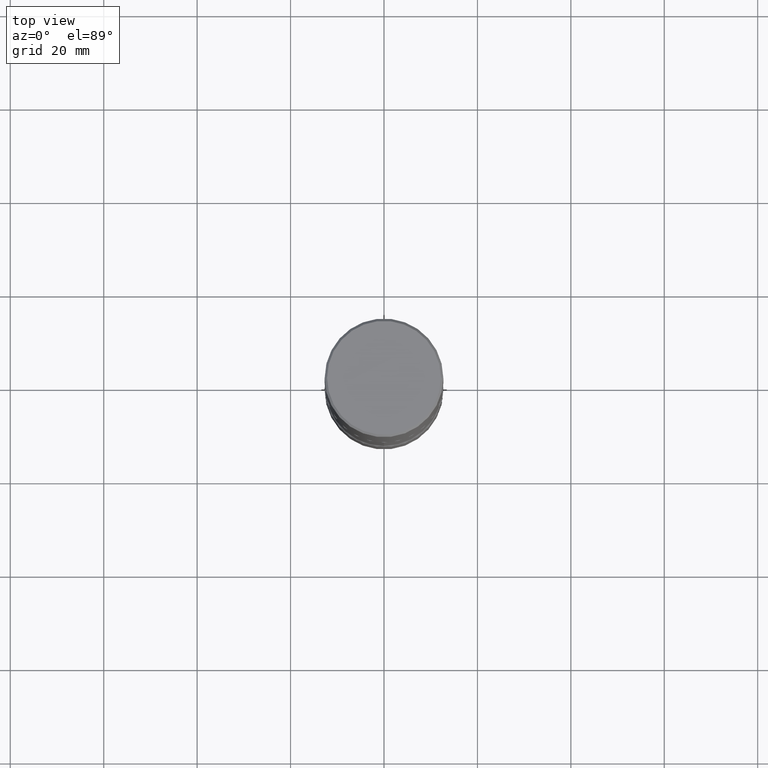
[diagram: clean part render]
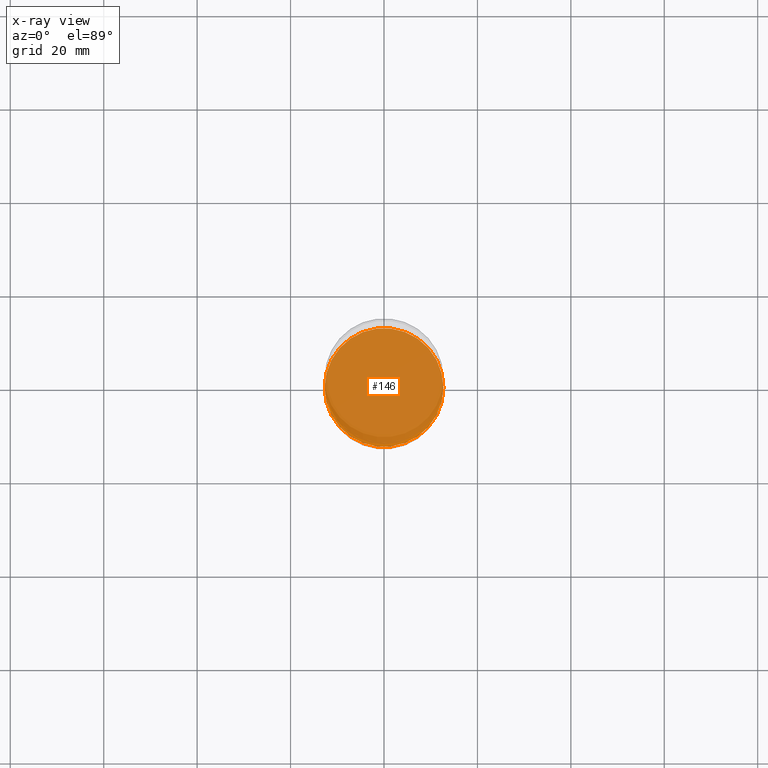
[diagram: x-ray — body ghosted, one internal face saturated and labeled with its STEP entity id]
A machine part, top view, then the same camera in x-ray: the body is ghosted and one INTERNAL B-rep face — a face not visible from any outside direction — is saturated and labeled: STEP entity #146.
In plain terms, the highlighted planar face has unit normal (0, -0, -1).
Its self-contained STEP definition (entity closure, byte-faithful):
#21 = CARTESIAN_POINT ( 'NONE',  ( 1.161597682937940108E-28, -1.658453635950494339E-14, -4.750000000000000000 ) ) ;
#51 = CARTESIAN_POINT ( 'NONE',  ( 1.161597682937940108E-28, -1.658453635950494339E-14, -4.750000000000000000 ) ) ;
#54 = CARTESIAN_POINT ( 'NONE',  ( 0.5000000000000006661, -2.007601769834807990E-14, -4.750000000000000000 ) ) ;
#88 = EDGE_LOOP ( 'NONE', ( #468, #179 ) ) ;
#100 = VERTEX_POINT ( 'NONE', #267 ) ;
#116 = EDGE_CURVE ( 'NONE', #136, #100, #455, .T. ) ;
#136 = VERTEX_POINT ( 'NONE', #54 ) ;
#138 = DIRECTION ( 'NONE',  ( 1.000000000000000000, -6.982962677686265133E-15, 0.000000000000000000 ) ) ;
#146 = ADVANCED_FACE ( 'NONE', ( #536 ), #540, .F. ) ;
#148 = DIRECTION ( 'NONE',  ( 2.438088387897960049E-29, -3.491481338843145188E-15, -1.000000000000000000 ) ) ;
#158 = CARTESIAN_POINT ( 'NONE',  ( 1.161597682937940108E-28, -1.658453635950494339E-14, -4.750000000000000000 ) ) ;
#175 = AXIS2_PLACEMENT_3D ( 'NONE', #51, #238, #284 ) ;
#179 = ORIENTED_EDGE ( 'NONE', *, *, #474, .T. ) ;
#213 = AXIS2_PLACEMENT_3D ( 'NONE', #21, #148, #326 ) ;
#238 = DIRECTION ( 'NONE',  ( -2.445468806185136597E-29, 3.491481338843145583E-15, 1.000000000000000000 ) ) ;
#267 = CARTESIAN_POINT ( 'NONE',  ( -0.5000000000000006661, -1.516162629739875255E-14, -4.750000000000000000 ) ) ;
#284 = DIRECTION ( 'NONE',  ( 1.000000000000000000, -6.982962677686265133E-15, 0.000000000000000000 ) ) ;
#297 = CIRCLE ( 'NONE', #446, 0.5000000000000006661 ) ;
#326 = DIRECTION ( 'NONE',  ( -1.000000000000000000, 6.982962677686265922E-15, -4.876176775795935793E-29 ) ) ;
#416 = DIRECTION ( 'NONE',  ( -2.445468806185136597E-29, 3.491481338843145583E-15, 1.000000000000000000 ) ) ;
#446 = AXIS2_PLACEMENT_3D ( 'NONE', #158, #416, #138 ) ;
#455 = CIRCLE ( 'NONE', #175, 0.5000000000000006661 ) ;
#468 = ORIENTED_EDGE ( 'NONE', *, *, #116, .T. ) ;
#474 = EDGE_CURVE ( 'NONE', #100, #136, #297, .T. ) ;
#536 = FACE_OUTER_BOUND ( 'NONE', #88, .T. ) ;
#540 = PLANE ( 'NONE',  #213 ) ;